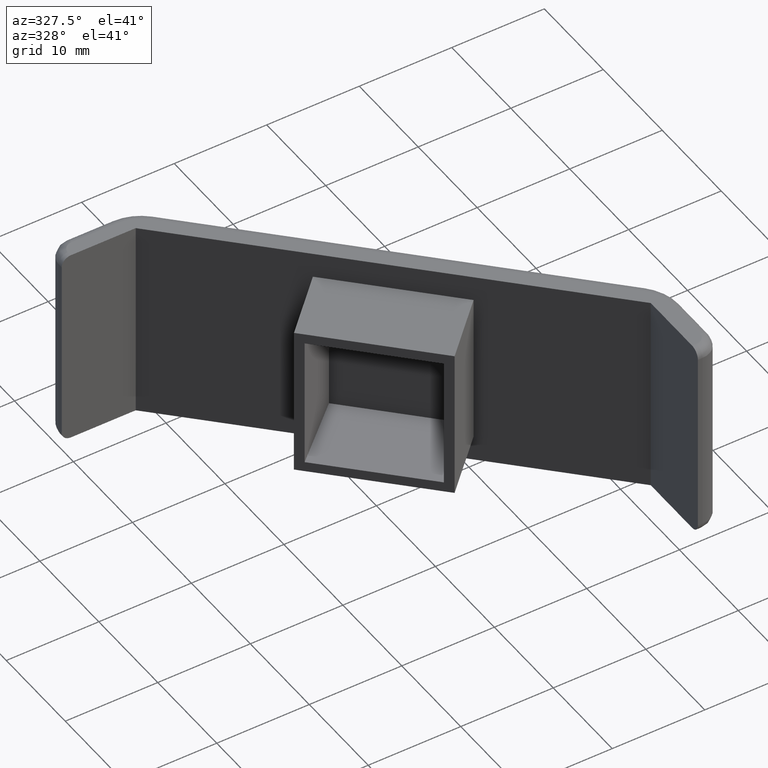
[diagram: clean part render]
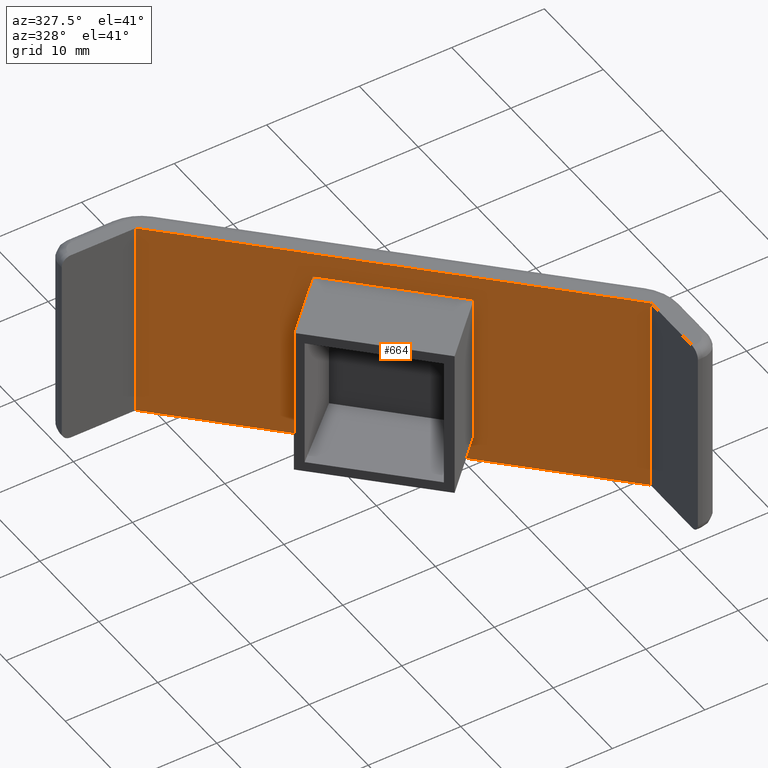
[diagram: same view with one face highlighted and labeled with its STEP entity id]
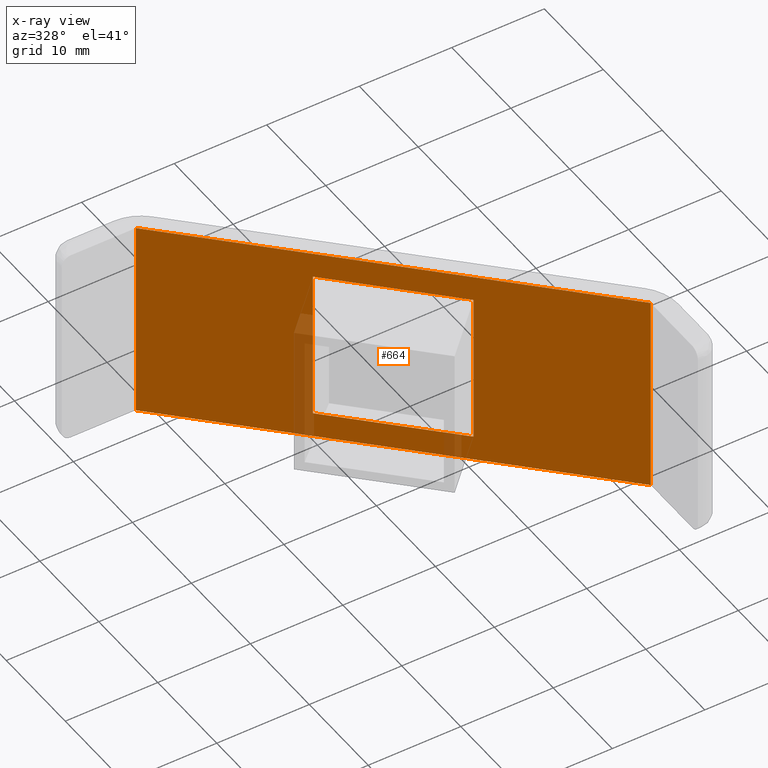
[diagram: x-ray of the same camera — body ghosted, the highlighted face saturated]
A machine part, auxiliary view. The second image highlights one B-rep face of the part: STEP entity #664.
The next image is the same camera in x-ray: the body ghosted, the highlighted face saturated — about 4% of this face is hidden behind the body in this view.
In plain terms, the highlighted planar face has unit normal (0.7071, 0.7071, 0).
Its self-contained STEP definition (entity closure, byte-faithful):
#40=FACE_BOUND('',#87,.T.);
#44=FACE_OUTER_BOUND('',#86,.T.);
#86=EDGE_LOOP('',(#470,#471,#472,#473));
#87=EDGE_LOOP('',(#474,#475,#476,#477));
#131=LINE('',#1006,#193);
#140=LINE('',#1035,#202);
#144=LINE('',#1044,#206);
#145=LINE('',#1045,#207);
#146=LINE('',#1048,#208);
#147=LINE('',#1050,#209);
#148=LINE('',#1052,#210);
#149=LINE('',#1053,#211);
#193=VECTOR('',#791,48.0832611206852);
#202=VECTOR('',#812,48.0832611206852);
#206=VECTOR('',#820,22.);
#207=VECTOR('',#821,22.);
#208=VECTOR('',#822,15.);
#209=VECTOR('',#823,16.5);
#210=VECTOR('',#824,15.);
#211=VECTOR('',#825,16.5);
#293=VERTEX_POINT('',#1003);
#294=VERTEX_POINT('',#1005);
#307=VERTEX_POINT('',#1032);
#308=VERTEX_POINT('',#1034);
#312=VERTEX_POINT('',#1046);
#313=VERTEX_POINT('',#1047);
#314=VERTEX_POINT('',#1049);
#315=VERTEX_POINT('',#1051);
#353=EDGE_CURVE('',#293,#294,#131,.T.);
#367=EDGE_CURVE('',#308,#307,#140,.T.);
#372=EDGE_CURVE('',#294,#307,#144,.T.);
#373=EDGE_CURVE('',#293,#308,#145,.T.);
#374=EDGE_CURVE('',#312,#313,#146,.T.);
#375=EDGE_CURVE('',#314,#312,#147,.T.);
#376=EDGE_CURVE('',#315,#314,#148,.T.);
#377=EDGE_CURVE('',#313,#315,#149,.T.);
#470=ORIENTED_EDGE('',*,*,#367,.T.);
#471=ORIENTED_EDGE('',*,*,#372,.F.);
#472=ORIENTED_EDGE('',*,*,#353,.F.);
#473=ORIENTED_EDGE('',*,*,#373,.T.);
#474=ORIENTED_EDGE('',*,*,#374,.F.);
#475=ORIENTED_EDGE('',*,*,#375,.F.);
#476=ORIENTED_EDGE('',*,*,#376,.F.);
#477=ORIENTED_EDGE('',*,*,#377,.F.);
#644=PLANE('',#716);
#664=ADVANCED_FACE('',(#44,#40),#644,.F.);
#716=AXIS2_PLACEMENT_3D('',#1043,#818,#819);
#791=DIRECTION('',(0.707106781186547,-0.707106781186547,0.));
#812=DIRECTION('',(0.707106781186547,-0.707106781186547,0.));
#818=DIRECTION('center_axis',(0.707106781186548,0.707106781186548,0.));
#819=DIRECTION('ref_axis',(-0.707106781186548,0.707106781186547,0.));
#820=DIRECTION('',(0.,0.,-1.));
#821=DIRECTION('',(0.,0.,-1.));
#822=DIRECTION('',(0.707106781186547,-0.707106781186548,0.));
#823=DIRECTION('',(0.,0.,-1.));
#824=DIRECTION('',(-0.707106781186547,0.707106781186548,0.));
#825=DIRECTION('',(0.,0.,1.));
#1003=CARTESIAN_POINT('',(8.,42.,11.));
#1005=CARTESIAN_POINT('',(42.,8.,11.));
#1006=CARTESIAN_POINT('',(8.,42.,11.));
#1032=CARTESIAN_POINT('',(42.,8.,-11.));
#1034=CARTESIAN_POINT('',(8.,42.,-11.));
#1035=CARTESIAN_POINT('',(8.,42.,-11.));
#1043=CARTESIAN_POINT('Origin',(8.,42.,11.));
#1044=CARTESIAN_POINT('',(42.,8.,11.));
#1045=CARTESIAN_POINT('',(8.,42.,11.));
#1046=CARTESIAN_POINT('',(19.6966991411009,30.3033008588991,-8.25));
#1047=CARTESIAN_POINT('',(30.3033008588991,19.6966991411009,-8.25));
#1048=CARTESIAN_POINT('',(19.6966991411009,30.3033008588991,-8.25));
#1049=CARTESIAN_POINT('',(19.6966991411009,30.3033008588991,8.25));
#1050=CARTESIAN_POINT('',(19.6966991411009,30.3033008588991,6.75));
#1051=CARTESIAN_POINT('',(30.3033008588991,19.6966991411009,8.25));
#1052=CARTESIAN_POINT('',(19.6966991411009,30.3033008588991,8.25));
#1053=CARTESIAN_POINT('',(30.3033008588991,19.6966991411009,6.75));